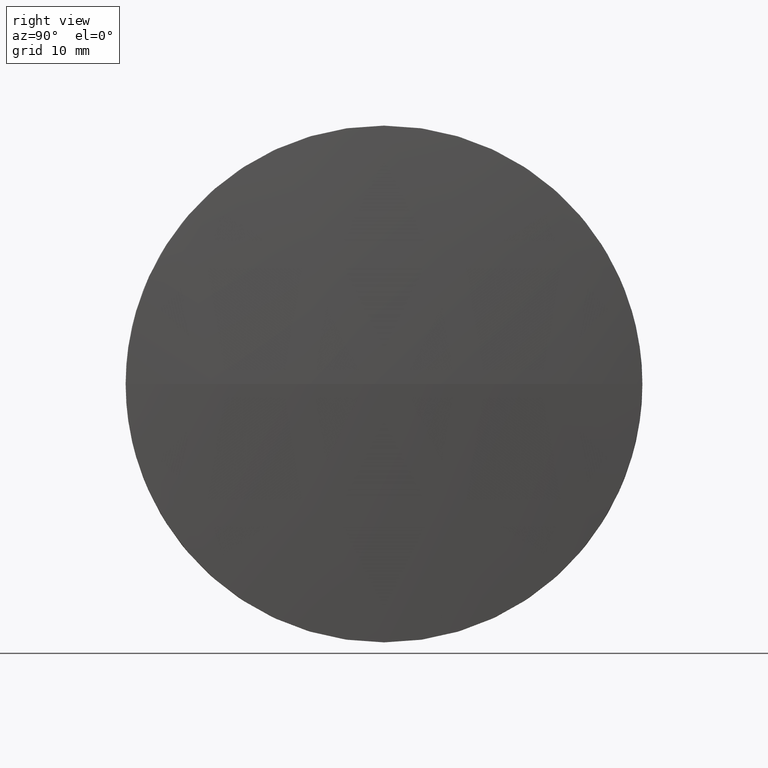
[diagram: clean part render]
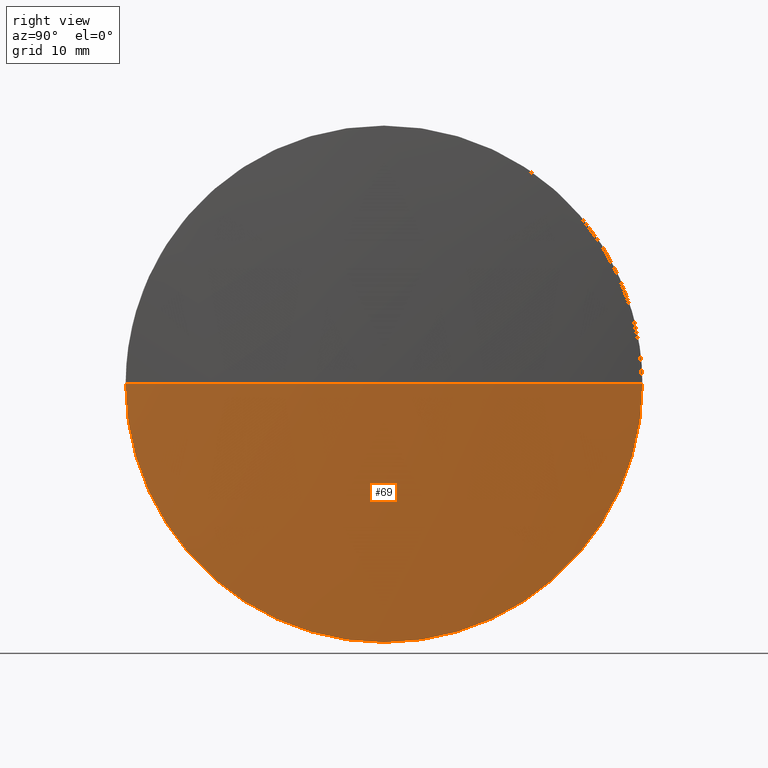
[diagram: same view with one face highlighted and labeled with its STEP entity id]
A machine part, right view. The second image highlights one B-rep face of the part: STEP entity #69.
In plain terms, the highlighted spherical surface has radius 516.904 mm.
Its self-contained STEP definition (entity closure, byte-faithful):
#4 = EDGE_CURVE ( 'NONE', #39, #54, #95, .T. ) ;
#9 = CARTESIAN_POINT ( 'NONE',  ( -276.1479059196190600, 130.0418907599245100, 0.0000000000000000000 ) ) ;
#19 = AXIS2_PLACEMENT_3D ( 'NONE', #105, #77, #121 ) ;
#24 = AXIS2_PLACEMENT_3D ( 'NONE', #9, #44, #66 ) ;
#38 = DIRECTION ( 'NONE',  ( 0.0000000000000000000, 1.000000000000000000, 0.0000000000000000000 ) ) ;
#39 = VERTEX_POINT ( 'NONE', #175 ) ;
#42 = CIRCLE ( 'NONE', #19, 40.00000000000000700 ) ;
#44 = DIRECTION ( 'NONE',  ( 0.0000000000000000000, 1.224646799147353200E-016, -1.000000000000000000 ) ) ;
#48 = CARTESIAN_POINT ( 'NONE',  ( 239.2061263384603600, 130.0418907599245100, -40.00000000000000700 ) ) ;
#51 = AXIS2_PLACEMENT_3D ( 'NONE', #169, #145, #86 ) ;
#54 = VERTEX_POINT ( 'NONE', #114 ) ;
#55 = AXIS2_PLACEMENT_3D ( 'NONE', #61, #168, #133 ) ;
#61 = CARTESIAN_POINT ( 'NONE',  ( -276.1479059196190600, 130.0418907599245100, 0.0000000000000000000 ) ) ;
#64 = EDGE_LOOP ( 'NONE', ( #184, #110, #152, #68 ) ) ;
#66 = DIRECTION ( 'NONE',  ( 0.0000000000000000000, 1.000000000000000000, 1.224646799147353200E-016 ) ) ;
#67 = EDGE_CURVE ( 'NONE', #39, #180, #99, .T. ) ;
#68 = ORIENTED_EDGE ( 'NONE', *, *, #162, .F. ) ;
#69 = ADVANCED_FACE ( 'NONE', ( #124 ), #92, .T. ) ;
#77 = DIRECTION ( 'NONE',  ( -1.000000000000000000, -0.0000000000000000000, -0.0000000000000000000 ) ) ;
#86 = DIRECTION ( 'NONE',  ( 0.0000000000000000000, 0.0000000000000000000, 1.000000000000000000 ) ) ;
#92 = SPHERICAL_SURFACE ( 'NONE', #118, 516.9040322580793800 ) ;
#95 = CIRCLE ( 'NONE', #24, 516.9040322580793800 ) ;
#99 = CIRCLE ( 'NONE', #55, 516.9040322580793800 ) ;
#105 = CARTESIAN_POINT ( 'NONE',  ( 239.2061263384603600, 130.0418907599245100, 0.0000000000000000000 ) ) ;
#110 = ORIENTED_EDGE ( 'NONE', *, *, #4, .T. ) ;
#114 = CARTESIAN_POINT ( 'NONE',  ( 239.2061263384603400, 90.04189075992455600, -4.898587196589405900E-015 ) ) ;
#118 = AXIS2_PLACEMENT_3D ( 'NONE', #178, #181, #38 ) ;
#121 = DIRECTION ( 'NONE',  ( 0.0000000000000000000, 0.0000000000000000000, 1.000000000000000000 ) ) ;
#123 = EDGE_CURVE ( 'NONE', #140, #54, #42, .T. ) ;
#124 = FACE_OUTER_BOUND ( 'NONE', #64, .T. ) ;
#131 = CARTESIAN_POINT ( 'NONE',  ( 239.2061263384603400, 170.0418907599244300, 0.0000000000000000000 ) ) ;
#133 = DIRECTION ( 'NONE',  ( 1.000000000000000000, 0.0000000000000000000, 0.0000000000000000000 ) ) ;
#140 = VERTEX_POINT ( 'NONE', #48 ) ;
#145 = DIRECTION ( 'NONE',  ( -1.000000000000000000, -0.0000000000000000000, -0.0000000000000000000 ) ) ;
#152 = ORIENTED_EDGE ( 'NONE', *, *, #123, .F. ) ;
#162 = EDGE_CURVE ( 'NONE', #180, #140, #186, .T. ) ;
#168 = DIRECTION ( 'NONE',  ( -0.0000000000000000000, 0.0000000000000000000, 1.000000000000000000 ) ) ;
#169 = CARTESIAN_POINT ( 'NONE',  ( 239.2061263384603600, 130.0418907599245100, 0.0000000000000000000 ) ) ;
#175 = CARTESIAN_POINT ( 'NONE',  ( 240.7561263384602600, 130.0418907599245400, 0.0000000000000000000 ) ) ;
#178 = CARTESIAN_POINT ( 'NONE',  ( -276.1479059196190600, 130.0418907599245100, 0.0000000000000000000 ) ) ;
#180 = VERTEX_POINT ( 'NONE', #131 ) ;
#181 = DIRECTION ( 'NONE',  ( -0.0000000000000000000, 0.0000000000000000000, -1.000000000000000000 ) ) ;
#184 = ORIENTED_EDGE ( 'NONE', *, *, #67, .F. ) ;
#186 = CIRCLE ( 'NONE', #51, 40.00000000000000700 ) ;